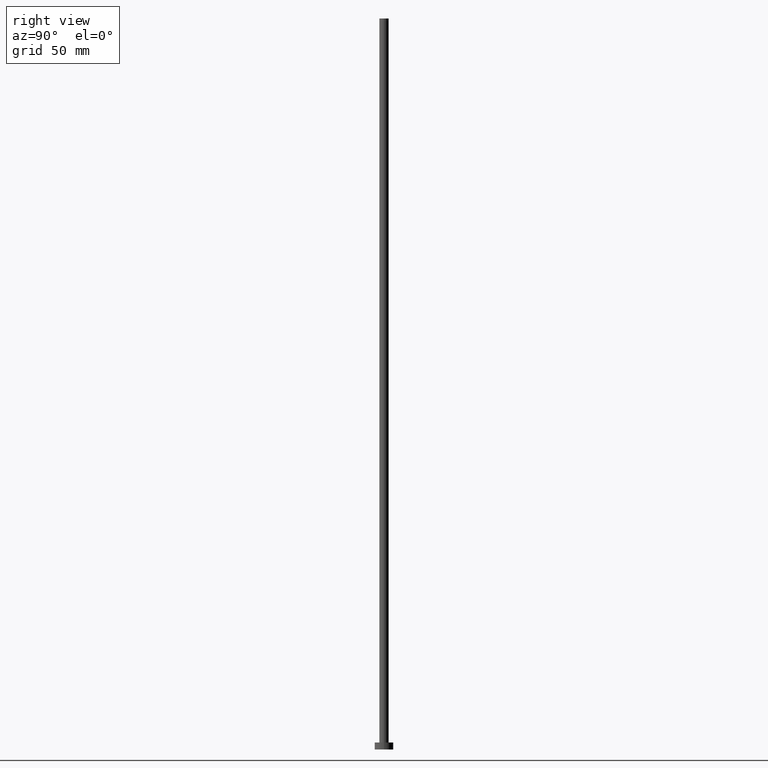
[diagram: clean part render]
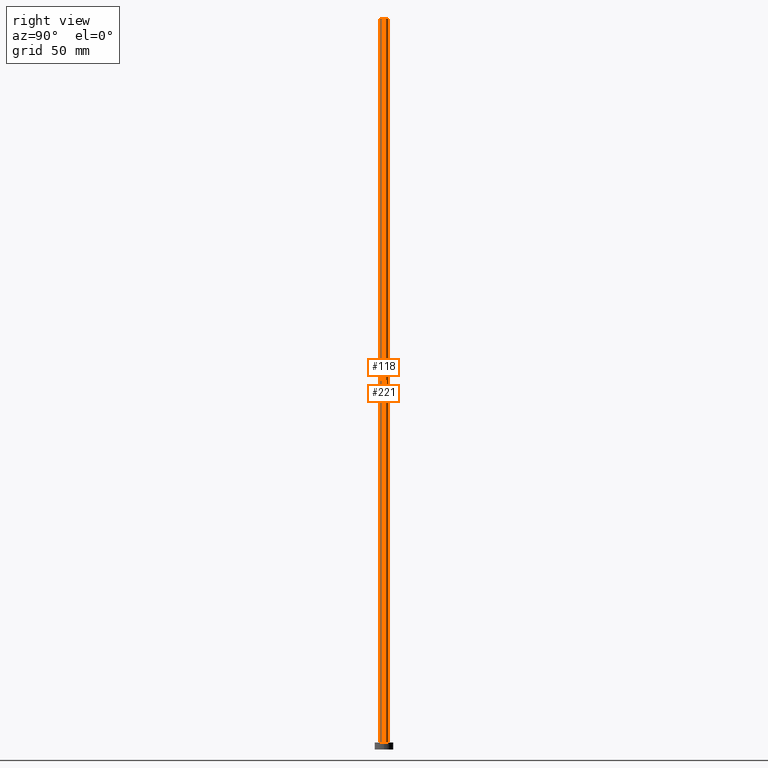
[diagram: same view with one multi-face feature highlighted, each face labeled with its STEP entity id]
A machine part, right view. The highlighted faces form ONE feature: a constant-radius fillet chain: 2 tangent blend faces with common blend radius 2 mm. The faces share edges in the B-rep.
Their STEP definitions:
[1] entity #221 (Cylinder):
#12 = VECTOR ( 'NONE', #60, 1000.000000000000000 ) ;
#14 = EDGE_LOOP ( 'NONE', ( #111, #196, #132, #188 ) ) ;
#15 = EDGE_CURVE ( 'NONE', #247, #90, #146, .T. ) ;
#19 = EDGE_CURVE ( 'NONE', #83, #247, #175, .T. ) ;
#21 = CARTESIAN_POINT ( 'NONE',  ( 2.000000000000000000, 2.449293598294706414E-16, 315.0000000000000000 ) ) ;
#25 = DIRECTION ( 'NONE',  ( -0.000000000000000000, -0.000000000000000000, -1.000000000000000000 ) ) ;
#26 = DIRECTION ( 'NONE',  ( -1.000000000000000000, 0.000000000000000000, 0.000000000000000000 ) ) ;
#29 = AXIS2_PLACEMENT_3D ( 'NONE', #154, #156, #63 ) ;
#36 = CARTESIAN_POINT ( 'NONE',  ( -2.000000000000000000, 0.000000000000000000, 3.000000000000000000 ) ) ;
#42 = CIRCLE ( 'NONE', #204, 2.000000000000000000 ) ;
#60 = DIRECTION ( 'NONE',  ( -0.000000000000000000, -0.000000000000000000, -1.000000000000000000 ) ) ;
#63 = DIRECTION ( 'NONE',  ( 1.000000000000000000, 0.000000000000000000, 0.000000000000000000 ) ) ;
#68 = FACE_OUTER_BOUND ( 'NONE', #14, .T. ) ;
#73 = CARTESIAN_POINT ( 'NONE',  ( 2.000000000000000000, 2.449293598294706414E-16, 3.000000000000000000 ) ) ;
#83 = VERTEX_POINT ( 'NONE', #21 ) ;
#90 = VERTEX_POINT ( 'NONE', #36 ) ;
#93 = CARTESIAN_POINT ( 'NONE',  ( 2.000000000000000000, 2.449293598294706414E-16, 315.0000000000000000 ) ) ;
#99 = CARTESIAN_POINT ( 'NONE',  ( -2.000000000000000000, 0.000000000000000000, 315.0000000000000000 ) ) ;
#108 = CARTESIAN_POINT ( 'NONE',  ( -2.000000000000000000, 0.000000000000000000, 315.0000000000000000 ) ) ;
#111 = ORIENTED_EDGE ( 'NONE', *, *, #191, .F. ) ;
#115 = EDGE_CURVE ( 'NONE', #235, #90, #197, .T. ) ;
#122 = CARTESIAN_POINT ( 'NONE',  ( 0.000000000000000000, 0.000000000000000000, 315.0000000000000000 ) ) ;
#132 = ORIENTED_EDGE ( 'NONE', *, *, #15, .T. ) ;
#143 = AXIS2_PLACEMENT_3D ( 'NONE', #144, #179, #26 ) ;
#144 = CARTESIAN_POINT ( 'NONE',  ( 0.000000000000000000, 0.000000000000000000, 315.0000000000000000 ) ) ;
#146 = CIRCLE ( 'NONE', #29, 2.000000000000000000 ) ;
#154 = CARTESIAN_POINT ( 'NONE',  ( 0.000000000000000000, 0.000000000000000000, 3.000000000000000000 ) ) ;
#156 = DIRECTION ( 'NONE',  ( 0.000000000000000000, 0.000000000000000000, 1.000000000000000000 ) ) ;
#161 = VECTOR ( 'NONE', #25, 1000.000000000000000 ) ;
#165 = DIRECTION ( 'NONE',  ( 1.000000000000000000, 0.000000000000000000, 0.000000000000000000 ) ) ;
#175 = LINE ( 'NONE', #93, #161 ) ;
#179 = DIRECTION ( 'NONE',  ( -0.000000000000000000, -0.000000000000000000, -1.000000000000000000 ) ) ;
#188 = ORIENTED_EDGE ( 'NONE', *, *, #115, .F. ) ;
#191 = EDGE_CURVE ( 'NONE', #83, #235, #42, .T. ) ;
#196 = ORIENTED_EDGE ( 'NONE', *, *, #19, .T. ) ;
#197 = LINE ( 'NONE', #99, #12 ) ;
#204 = AXIS2_PLACEMENT_3D ( 'NONE', #122, #241, #165 ) ;
#219 = CYLINDRICAL_SURFACE ( 'NONE', #143, 2.000000000000000000 ) ;
#221 = ADVANCED_FACE ( 'NONE', ( #68 ), #219, .T. ) ;
#235 = VERTEX_POINT ( 'NONE', #108 ) ;
#241 = DIRECTION ( 'NONE',  ( 0.000000000000000000, 0.000000000000000000, 1.000000000000000000 ) ) ;
#247 = VERTEX_POINT ( 'NONE', #73 ) ;
[2] entity #118 (Cylinder):
#5 = DIRECTION ( 'NONE',  ( 0.000000000000000000, 0.000000000000000000, 1.000000000000000000 ) ) ;
#8 = CARTESIAN_POINT ( 'NONE',  ( 0.000000000000000000, 0.000000000000000000, 315.0000000000000000 ) ) ;
#12 = VECTOR ( 'NONE', #60, 1000.000000000000000 ) ;
#17 = CARTESIAN_POINT ( 'NONE',  ( 0.000000000000000000, 0.000000000000000000, 315.0000000000000000 ) ) ;
#19 = EDGE_CURVE ( 'NONE', #83, #247, #175, .T. ) ;
#21 = CARTESIAN_POINT ( 'NONE',  ( 2.000000000000000000, 2.449293598294706414E-16, 315.0000000000000000 ) ) ;
#23 = AXIS2_PLACEMENT_3D ( 'NONE', #8, #162, #101 ) ;
#25 = DIRECTION ( 'NONE',  ( -0.000000000000000000, -0.000000000000000000, -1.000000000000000000 ) ) ;
#36 = CARTESIAN_POINT ( 'NONE',  ( -2.000000000000000000, 0.000000000000000000, 3.000000000000000000 ) ) ;
#44 = AXIS2_PLACEMENT_3D ( 'NONE', #17, #194, #215 ) ;
#60 = DIRECTION ( 'NONE',  ( -0.000000000000000000, -0.000000000000000000, -1.000000000000000000 ) ) ;
#73 = CARTESIAN_POINT ( 'NONE',  ( 2.000000000000000000, 2.449293598294706414E-16, 3.000000000000000000 ) ) ;
#75 = EDGE_CURVE ( 'NONE', #90, #247, #96, .T. ) ;
#83 = VERTEX_POINT ( 'NONE', #21 ) ;
#90 = VERTEX_POINT ( 'NONE', #36 ) ;
#93 = CARTESIAN_POINT ( 'NONE',  ( 2.000000000000000000, 2.449293598294706414E-16, 315.0000000000000000 ) ) ;
#94 = ORIENTED_EDGE ( 'NONE', *, *, #115, .T. ) ;
#96 = CIRCLE ( 'NONE', #212, 2.000000000000000000 ) ;
#99 = CARTESIAN_POINT ( 'NONE',  ( -2.000000000000000000, 0.000000000000000000, 315.0000000000000000 ) ) ;
#101 = DIRECTION ( 'NONE',  ( 1.000000000000000000, 0.000000000000000000, 0.000000000000000000 ) ) ;
#107 = ORIENTED_EDGE ( 'NONE', *, *, #75, .T. ) ;
#108 = CARTESIAN_POINT ( 'NONE',  ( -2.000000000000000000, 0.000000000000000000, 315.0000000000000000 ) ) ;
#115 = EDGE_CURVE ( 'NONE', #235, #90, #197, .T. ) ;
#118 = ADVANCED_FACE ( 'NONE', ( #176 ), #138, .T. ) ;
#129 = CIRCLE ( 'NONE', #23, 2.000000000000000000 ) ;
#138 = CYLINDRICAL_SURFACE ( 'NONE', #44, 2.000000000000000000 ) ;
#153 = ORIENTED_EDGE ( 'NONE', *, *, #19, .F. ) ;
#161 = VECTOR ( 'NONE', #25, 1000.000000000000000 ) ;
#162 = DIRECTION ( 'NONE',  ( 0.000000000000000000, 0.000000000000000000, 1.000000000000000000 ) ) ;
#167 = EDGE_CURVE ( 'NONE', #235, #83, #129, .T. ) ;
#170 = EDGE_LOOP ( 'NONE', ( #153, #211, #94, #107 ) ) ;
#175 = LINE ( 'NONE', #93, #161 ) ;
#176 = FACE_OUTER_BOUND ( 'NONE', #170, .T. ) ;
#194 = DIRECTION ( 'NONE',  ( -0.000000000000000000, -0.000000000000000000, -1.000000000000000000 ) ) ;
#197 = LINE ( 'NONE', #99, #12 ) ;
#211 = ORIENTED_EDGE ( 'NONE', *, *, #167, .F. ) ;
#212 = AXIS2_PLACEMENT_3D ( 'NONE', #217, #5, #255 ) ;
#215 = DIRECTION ( 'NONE',  ( -1.000000000000000000, 0.000000000000000000, 0.000000000000000000 ) ) ;
#217 = CARTESIAN_POINT ( 'NONE',  ( 0.000000000000000000, 0.000000000000000000, 3.000000000000000000 ) ) ;
#235 = VERTEX_POINT ( 'NONE', #108 ) ;
#247 = VERTEX_POINT ( 'NONE', #73 ) ;
#255 = DIRECTION ( 'NONE',  ( 1.000000000000000000, 0.000000000000000000, 0.000000000000000000 ) ) ;